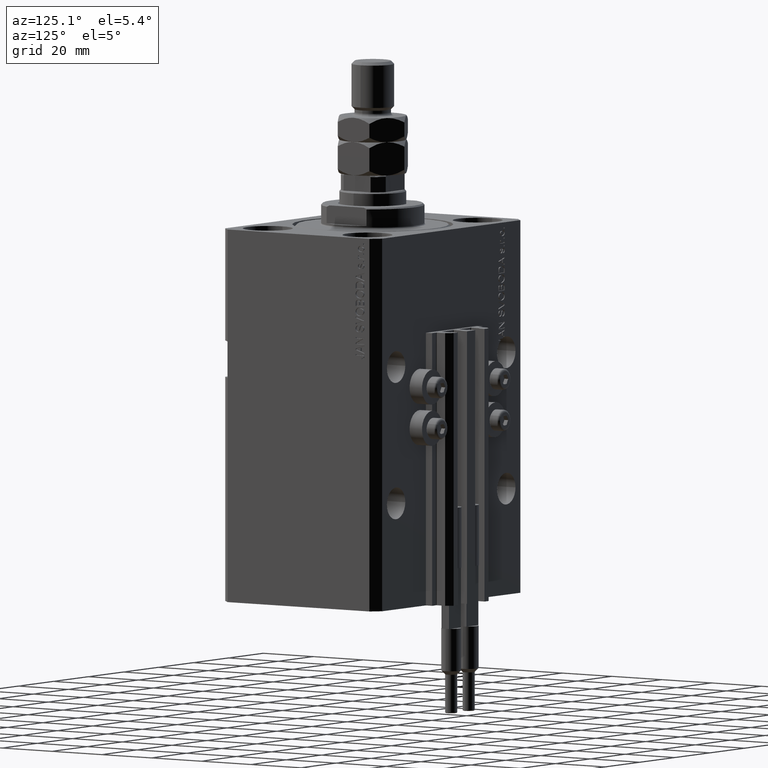
[diagram: clean part render]
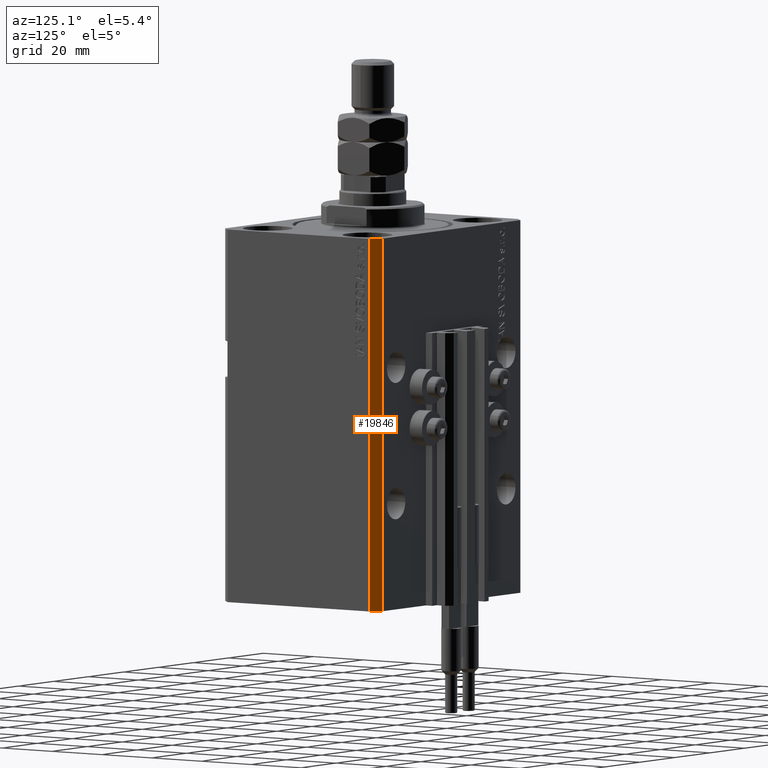
[diagram: same view with one face highlighted and labeled with its STEP entity id]
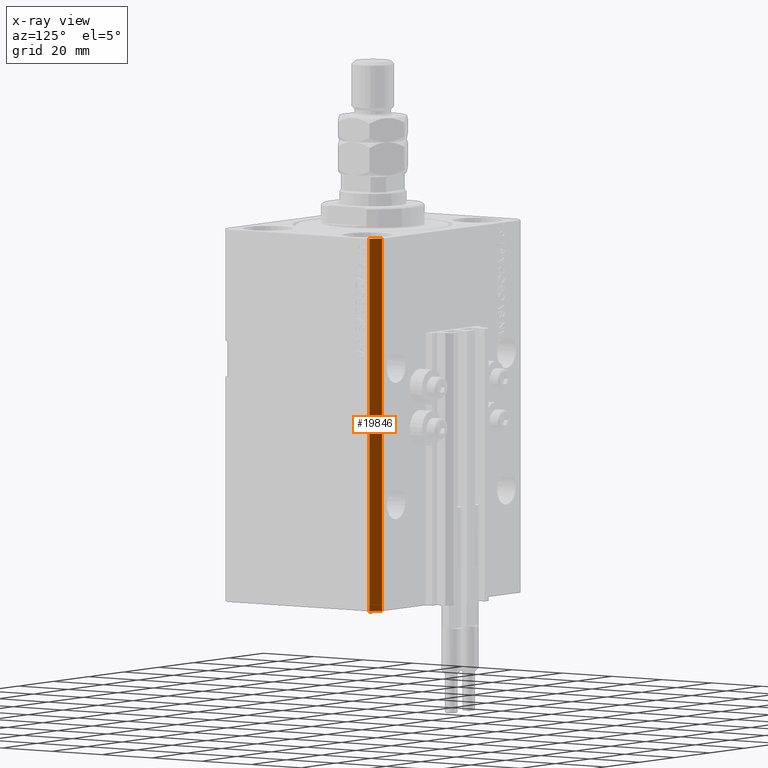
[diagram: x-ray of the same camera — body ghosted, the highlighted face saturated]
A machine part, auxiliary view. The second image highlights one B-rep face of the part: STEP entity #19846.
The next image is the same camera in x-ray: the body ghosted, the highlighted face saturated — about 0% of this face is hidden behind the body in this view.
In plain terms, the highlighted planar face has unit normal (0.7071, 0.7071, 0).
Its self-contained STEP definition (entity closure, byte-faithful):
#178 = LINE ( 'NONE', #46388, #1462 ) ;
#552 = VECTOR ( 'NONE', #43263, 1000.000000000000000 ) ;
#1462 = VECTOR ( 'NONE', #46915, 1000.000000000000000 ) ;
#2392 = CARTESIAN_POINT ( 'NONE',  ( 42.50000000000051870, 28.49999999999995381, 0.000000000000000000 ) ) ;
#3836 = LINE ( 'NONE', #26832, #10626 ) ;
#8018 = CARTESIAN_POINT ( 'NONE',  ( 39.50000000000056843, 31.50000000000000000, -123.0000000000000000 ) ) ;
#9830 = EDGE_CURVE ( 'NONE', #44984, #30220, #37388, .T. ) ;
#9923 = FACE_OUTER_BOUND ( 'NONE', #20689, .T. ) ;
#10404 = ORIENTED_EDGE ( 'NONE', *, *, #27022, .T. ) ;
#10626 = VECTOR ( 'NONE', #15604, 1000.000000000000114 ) ;
#10826 = CARTESIAN_POINT ( 'NONE',  ( 39.50000000000056843, 31.50000000000000000, -123.0000000000000000 ) ) ;
#10852 = VERTEX_POINT ( 'NONE', #17050 ) ;
#10907 = PLANE ( 'NONE',  #19097 ) ;
#13017 = VERTEX_POINT ( 'NONE', #10826 ) ;
#15604 = DIRECTION ( 'NONE',  ( -0.7071067811865356934, 0.7071067811865594521, 0.000000000000000000 ) ) ;
#17050 = CARTESIAN_POINT ( 'NONE',  ( 42.50000000000051870, 28.49999999999995381, -123.0000000000000000 ) ) ;
#17968 = DIRECTION ( 'NONE',  ( -0.7071067811865356934, 0.7071067811865594521, 0.000000000000000000 ) ) ;
#19097 = AXIS2_PLACEMENT_3D ( 'NONE', #25756, #41813, #26484 ) ;
#19846 = ADVANCED_FACE ( 'NONE', ( #9923 ), #10907, .T. ) ;
#20689 = EDGE_LOOP ( 'NONE', ( #40910, #38055, #29347, #10404 ) ) ;
#22827 = LINE ( 'NONE', #8018, #552 ) ;
#25756 = CARTESIAN_POINT ( 'NONE',  ( 42.50000000000051870, 28.49999999999995381, -123.0000000000000000 ) ) ;
#26484 = DIRECTION ( 'NONE',  ( -0.7071067811865355823, 0.7071067811865594521, 0.000000000000000000 ) ) ;
#26832 = CARTESIAN_POINT ( 'NONE',  ( 42.50000000000051870, 28.49999999999995381, -123.0000000000000000 ) ) ;
#27022 = EDGE_CURVE ( 'NONE', #13017, #30220, #22827, .T. ) ;
#29347 = ORIENTED_EDGE ( 'NONE', *, *, #39348, .T. ) ;
#30220 = VERTEX_POINT ( 'NONE', #42972 ) ;
#30799 = EDGE_CURVE ( 'NONE', #10852, #44984, #178, .T. ) ;
#31748 = CARTESIAN_POINT ( 'NONE',  ( 42.50000000000051870, 28.49999999999995381, 0.000000000000000000 ) ) ;
#36896 = VECTOR ( 'NONE', #17968, 1000.000000000000114 ) ;
#37388 = LINE ( 'NONE', #2392, #36896 ) ;
#38055 = ORIENTED_EDGE ( 'NONE', *, *, #30799, .F. ) ;
#39348 = EDGE_CURVE ( 'NONE', #10852, #13017, #3836, .T. ) ;
#40910 = ORIENTED_EDGE ( 'NONE', *, *, #9830, .F. ) ;
#41813 = DIRECTION ( 'NONE',  ( 0.7071067811865594521, 0.7071067811865355823, -0.000000000000000000 ) ) ;
#42972 = CARTESIAN_POINT ( 'NONE',  ( 39.50000000000056843, 31.50000000000000000, 0.000000000000000000 ) ) ;
#43263 = DIRECTION ( 'NONE',  ( 0.000000000000000000, 0.000000000000000000, 1.000000000000000000 ) ) ;
#44984 = VERTEX_POINT ( 'NONE', #31748 ) ;
#46388 = CARTESIAN_POINT ( 'NONE',  ( 42.50000000000051870, 28.49999999999995381, -123.0000000000000000 ) ) ;
#46915 = DIRECTION ( 'NONE',  ( 0.000000000000000000, 0.000000000000000000, 1.000000000000000000 ) ) ;